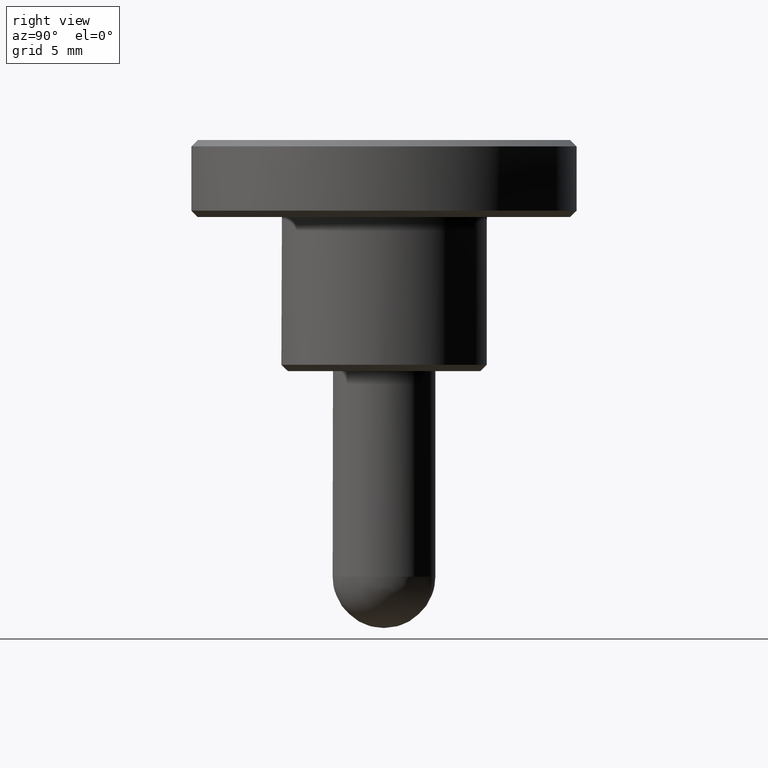
[diagram: clean part render]
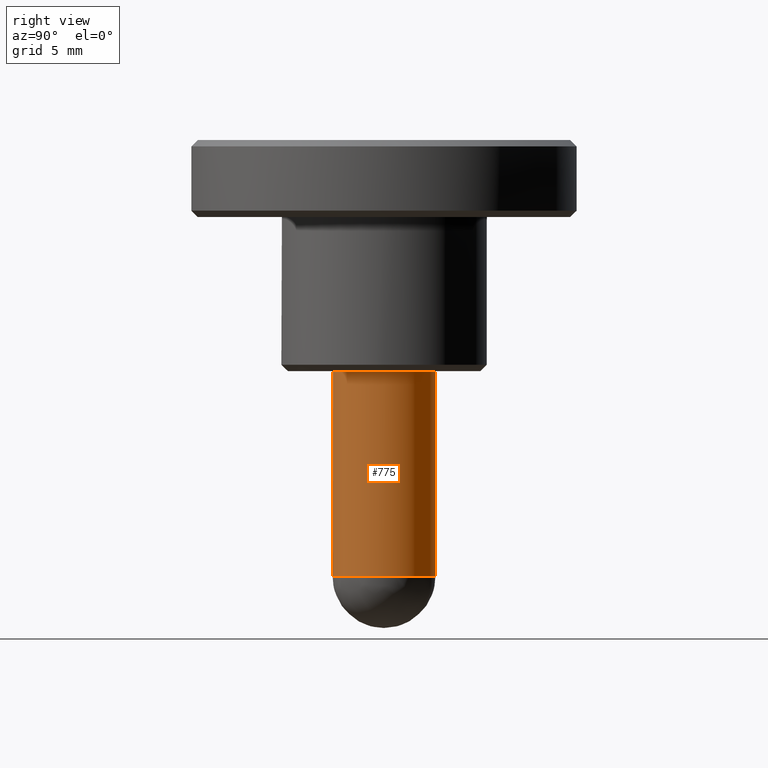
[diagram: same view with one face highlighted and labeled with its STEP entity id]
A machine part, right view. The second image highlights one B-rep face of the part: STEP entity #775.
In plain terms, the highlighted face is a freeform B-spline surface patch.
Its self-contained STEP definition (entity closure, byte-faithful):
#677=CARTESIAN_POINT('',(0.496512008319317,-3.969064855302155,-16.399999999999999));
#678=CARTESIAN_POINT('',(4.030931322009780,-3.526925032532884,-16.399999999999999));
#679=CARTESIAN_POINT('',(3.999847692256684,0.034906141993496,-16.399999999999999));
#680=CARTESIAN_POINT('',(3.964941550263188,4.034753834250179,-16.399999999999999));
#681=CARTESIAN_POINT('',(-0.034906141993496,3.999847692256684,-16.399999999999999));
#682=CARTESIAN_POINT('',(0.496512008319317,-3.969064855302155,0.410000000000000));
#683=CARTESIAN_POINT('',(4.030931322009780,-3.526925032532884,0.410000000000000));
#684=CARTESIAN_POINT('',(3.999847692256684,0.034906141993496,0.410000000000000));
#685=CARTESIAN_POINT('',(3.964941550263188,4.034753834250179,0.410000000000000));
#686=CARTESIAN_POINT('',(-0.034906141993496,3.999847692256684,0.410000000000000));
#694=(BOUNDED_SURFACE()B_SPLINE_SURFACE(2,1,((#677,#682),(#678,#683),(#679,#684),(#680,#685),(#681,#686)),.UNSPECIFIED.,.F.,.F.,.U.)B_SPLINE_SURFACE_WITH_KNOTS((3,2,3),(2,2),(0.0,6.097223638131957,12.724640636101480),(0.0,16.809999999999999),.UNSPECIFIED.)GEOMETRIC_REPRESENTATION_ITEM()RATIONAL_B_SPLINE_SURFACE(((0.956886118190660,0.956886118190660),(0.730538238691624,0.730538238691624),(1.0,1.0),(0.707106781186548,0.707106781186548),(1.0,1.0)))REPRESENTATION_ITEM('')SURFACE());
#695=CARTESIAN_POINT('',(0.496508679259291,-3.969065271749626,-16.0));
#696=VERTEX_POINT('',#695);
#697=CARTESIAN_POINT('',(4.0,0.0,-16.0));
#698=VERTEX_POINT('',#697);
#699=CARTESIAN_POINT('',(0.496508679259291,-3.969065271749626,-16.000000000000004));
#700=CARTESIAN_POINT('',(4.000000000000000,-3.530797385143436,-16.0));
#701=CARTESIAN_POINT('',(4.0,0.0,-16.0));
#709=(BOUNDED_CURVE()B_SPLINE_CURVE(2,(#699,#700,#701),.UNSPECIFIED.,.F.,.U.)B_SPLINE_CURVE_WITH_KNOTS((3,3),(0.771473787518632,1.0),.UNSPECIFIED.)CURVE()GEOMETRIC_REPRESENTATION_ITEM()RATIONAL_B_SPLINE_CURVE((0.954005704778685,0.732264888172341,1.0))REPRESENTATION_ITEM(''));
#710=EDGE_CURVE('',#696,#698,#709,.T.);
#711=ORIENTED_EDGE('',*,*,#710,.T.);
#712=CARTESIAN_POINT('',(-0.034906142013988,3.999847692256505,-16.0));
#713=VERTEX_POINT('',#712);
#714=CARTESIAN_POINT('',(4.0,0.0,-16.0));
#715=CARTESIAN_POINT('',(4.000000000000000,4.000000000000000,-15.999999999999998));
#716=CARTESIAN_POINT('',(0.0,4.0,-16.0));
#717=CARTESIAN_POINT('',(-0.017453403303300,4.0,-16.0));
#718=CARTESIAN_POINT('',(-0.034906142013988,3.999847692256506,-15.999999999999998));
#726=(BOUNDED_CURVE()B_SPLINE_CURVE(2,(#714,#715,#716,#717,#718),.UNSPECIFIED.,.F.,.U.)B_SPLINE_CURVE_WITH_KNOTS((3,2,3),(0.0,0.250000000000000,0.251539894336792),.UNSPECIFIED.)CURVE()GEOMETRIC_REPRESENTATION_ITEM()RATIONAL_B_SPLINE_CURVE((1.0,0.707106781186548,1.0,0.998195901564258,0.996414028096229))REPRESENTATION_ITEM(''));
#727=EDGE_CURVE('',#698,#713,#726,.T.);
#728=ORIENTED_EDGE('',*,*,#727,.T.);
#729=CARTESIAN_POINT('',(-0.034898830468448,3.999847756050031,-2.914335E-015));
#730=VERTEX_POINT('',#729);
#731=CARTESIAN_POINT('',(-0.034906142013988,3.999847692256505,-16.0));
#732=CARTESIAN_POINT('',(-0.034898830468448,3.999847756050031,-2.914335E-015));
#733=QUASI_UNIFORM_CURVE('',1,(#731,#732),.UNSPECIFIED.,.F.,.U.);
#734=EDGE_CURVE('',#713,#730,#733,.T.);
#735=ORIENTED_EDGE('',*,*,#734,.T.);
#736=CARTESIAN_POINT('',(4.0,0.0,0.0));
#737=VERTEX_POINT('',#736);
#738=CARTESIAN_POINT('',(-0.034898830468448,3.999847756050031,-2.914335E-015));
#739=CARTESIAN_POINT('',(-0.017449747311545,4.0,0.0));
#740=CARTESIAN_POINT('',(0.0,4.0,0.0));
#741=CARTESIAN_POINT('',(4.000000000000000,4.000000000000000,0.0));
#742=CARTESIAN_POINT('',(4.0,0.0,0.0));
#750=(BOUNDED_CURVE()B_SPLINE_CURVE(2,(#738,#739,#740,#741,#742),.UNSPECIFIED.,.F.,.U.)B_SPLINE_CURVE_WITH_KNOTS((3,2,3),(0.248460427645473,0.250000000000000,0.500000000000000),.UNSPECIFIED.)CURVE()GEOMETRIC_REPRESENTATION_ITEM()RATIONAL_B_SPLINE_CURVE((0.996414773254374,0.998196278789946,1.0,0.707106781186548,1.0))REPRESENTATION_ITEM(''));
#751=EDGE_CURVE('',#730,#737,#750,.T.);
#752=ORIENTED_EDGE('',*,*,#751,.T.);
#753=CARTESIAN_POINT('',(0.496512008340835,-3.969064855299463,-1.160246E-016));
#754=VERTEX_POINT('',#753);
#755=CARTESIAN_POINT('',(4.0,0.0,0.0));
#756=CARTESIAN_POINT('',(4.000000000000001,-3.530794400562341,0.0));
#757=CARTESIAN_POINT('',(0.496512008340835,-3.969064855299462,-1.160246E-016));
#765=(BOUNDED_CURVE()B_SPLINE_CURVE(2,(#755,#756,#757),.UNSPECIFIED.,.F.,.U.)B_SPLINE_CURVE_WITH_KNOTS((3,3),(0.500000000000000,0.728526071027471),.UNSPECIFIED.)CURVE()GEOMETRIC_REPRESENTATION_ITEM()RATIONAL_B_SPLINE_CURVE((1.0,0.732265053895890,0.954005430271171))REPRESENTATION_ITEM(''));
#766=EDGE_CURVE('',#737,#754,#765,.T.);
#767=ORIENTED_EDGE('',*,*,#766,.T.);
#768=CARTESIAN_POINT('',(0.496508679259291,-3.969065271749626,-16.0));
#769=CARTESIAN_POINT('',(0.496512008340835,-3.969064855299463,-1.160246E-016));
#770=QUASI_UNIFORM_CURVE('',1,(#768,#769),.UNSPECIFIED.,.F.,.U.);
#771=EDGE_CURVE('',#696,#754,#770,.T.);
#772=ORIENTED_EDGE('',*,*,#771,.F.);
#773=EDGE_LOOP('',(#711,#728,#735,#752,#767,#772));
#774=FACE_OUTER_BOUND('',#773,.T.);
#775=ADVANCED_FACE('',(#774),#694,.T.);